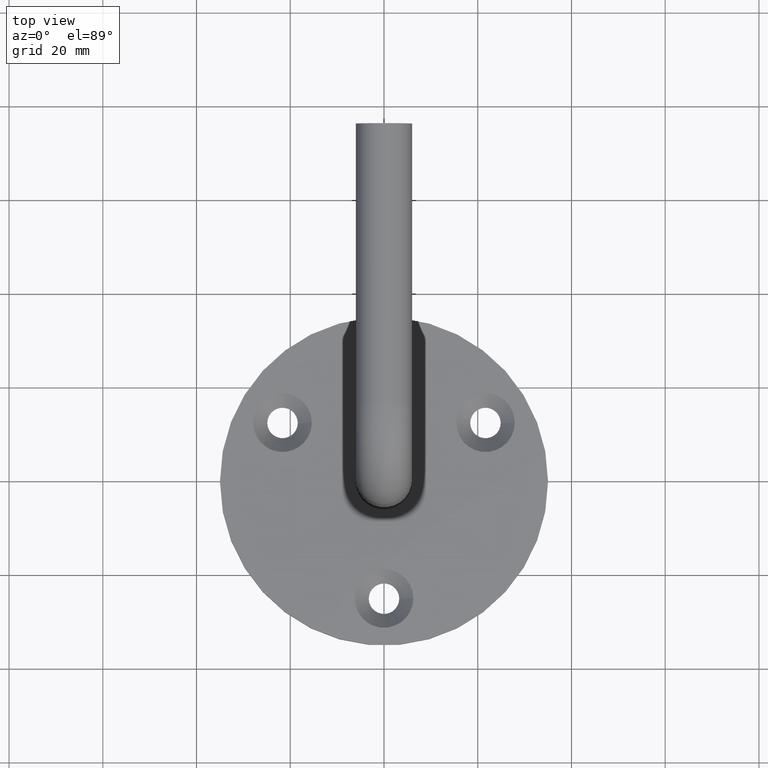
[diagram: clean part render]
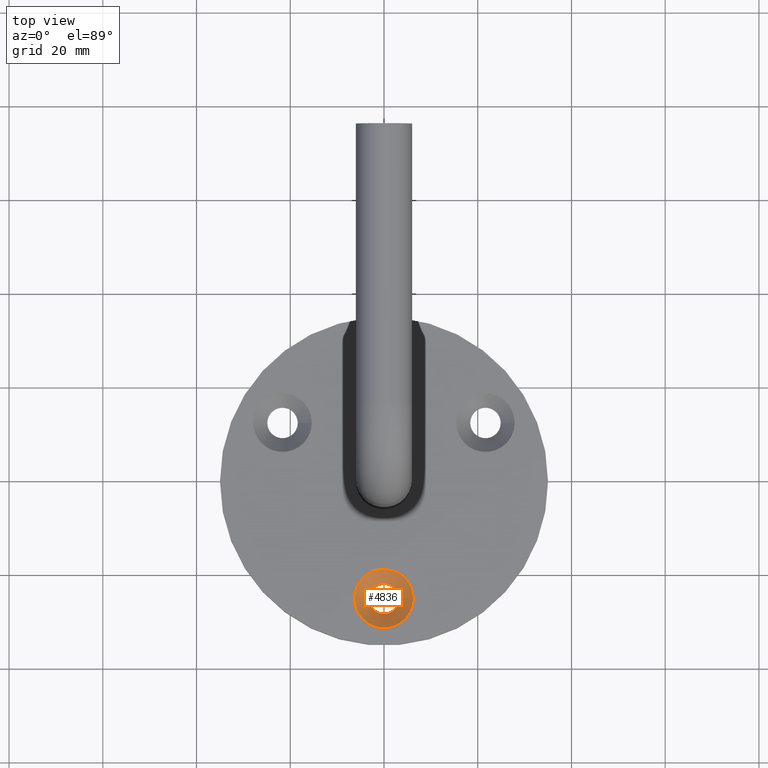
[diagram: same view with one face highlighted and labeled with its STEP entity id]
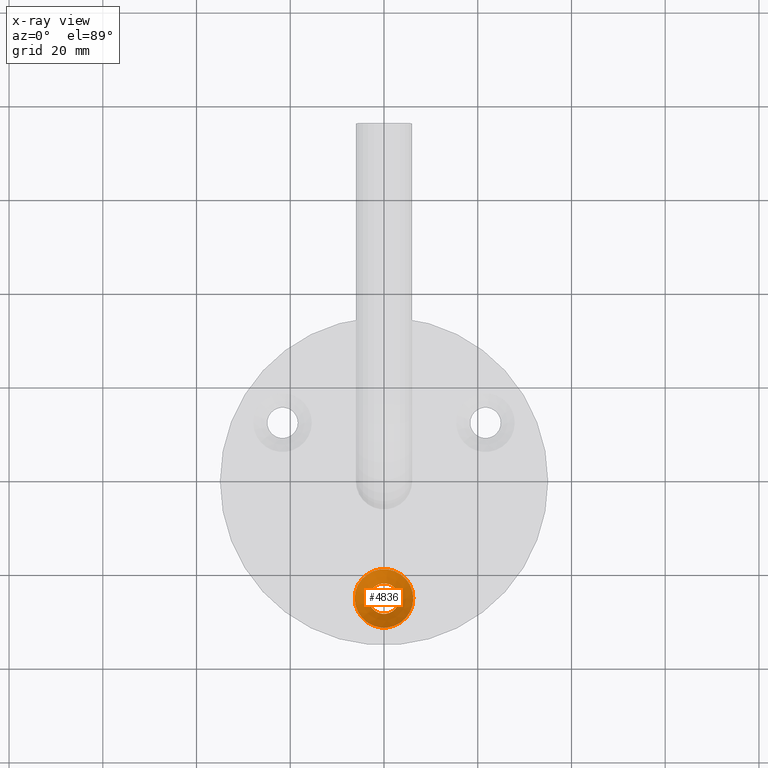
[diagram: x-ray of the same camera — body ghosted, the highlighted face saturated]
A machine part, top view. The second image highlights one B-rep face of the part: STEP entity #4836.
The next image is the same camera in x-ray: the body ghosted, the highlighted face saturated — about 0% of this face is hidden behind the body in this view.
In plain terms, the highlighted conical surface has half-angle 45 deg.
Its self-contained STEP definition (entity closure, byte-faithful):
#1475 = CIRCLE ( 'NONE', #7049, 3.250000000000011546 ) ;
#3803 = AXIS2_PLACEMENT_3D ( 'NONE', #7953, #10855, #6646 ) ;
#3857 = DIRECTION ( 'NONE',  ( 1.000000000000000000, 0.000000000000000000, 0.000000000000000000 ) ) ;
#4403 = AXIS2_PLACEMENT_3D ( 'NONE', #16603, #12526, #3857 ) ;
#4600 = CARTESIAN_POINT ( 'NONE',  ( 3.250000000000011546, -25.00000000000000000, 0.5000000000000108802 ) ) ;
#4836 = ADVANCED_FACE ( 'NONE', ( #10413, #17708 ), #7532, .F. ) ;
#6646 = DIRECTION ( 'NONE',  ( 1.000000000000000000, 0.000000000000000000, 0.000000000000000000 ) ) ;
#7049 = AXIS2_PLACEMENT_3D ( 'NONE', #18206, #18268, #16846 ) ;
#7322 = EDGE_CURVE ( 'NONE', #17469, #17469, #10386, .T. ) ;
#7532 = CONICAL_SURFACE ( 'NONE', #3803, 6.249999999999998224, 0.7853981633974473908 ) ;
#7953 = CARTESIAN_POINT ( 'NONE',  ( 0.000000000000000000, -25.00000000000000000, 3.500000000000003109 ) ) ;
#9243 = EDGE_CURVE ( 'NONE', #15239, #15239, #1475, .T. ) ;
#10386 = CIRCLE ( 'NONE', #4403, 6.249999999999998224 ) ;
#10413 = FACE_BOUND ( 'NONE', #13199, .T. ) ;
#10855 = DIRECTION ( 'NONE',  ( -0.000000000000000000, -0.000000000000000000, 1.000000000000000000 ) ) ;
#12526 = DIRECTION ( 'NONE',  ( -0.000000000000000000, -0.000000000000000000, 1.000000000000000000 ) ) ;
#13199 = EDGE_LOOP ( 'NONE', ( #17234 ) ) ;
#14422 = CARTESIAN_POINT ( 'NONE',  ( 6.249999999999998224, -25.00000000000000000, 3.500000000000003109 ) ) ;
#15239 = VERTEX_POINT ( 'NONE', #4600 ) ;
#15325 = EDGE_LOOP ( 'NONE', ( #17470 ) ) ;
#16603 = CARTESIAN_POINT ( 'NONE',  ( 0.000000000000000000, -25.00000000000000000, 3.500000000000003109 ) ) ;
#16846 = DIRECTION ( 'NONE',  ( 1.000000000000000000, 0.000000000000000000, 0.000000000000000000 ) ) ;
#17234 = ORIENTED_EDGE ( 'NONE', *, *, #9243, .F. ) ;
#17469 = VERTEX_POINT ( 'NONE', #14422 ) ;
#17470 = ORIENTED_EDGE ( 'NONE', *, *, #7322, .T. ) ;
#17708 = FACE_OUTER_BOUND ( 'NONE', #15325, .T. ) ;
#18206 = CARTESIAN_POINT ( 'NONE',  ( 0.000000000000000000, -25.00000000000000000, 0.5000000000000108802 ) ) ;
#18268 = DIRECTION ( 'NONE',  ( -0.000000000000000000, -0.000000000000000000, 1.000000000000000000 ) ) ;